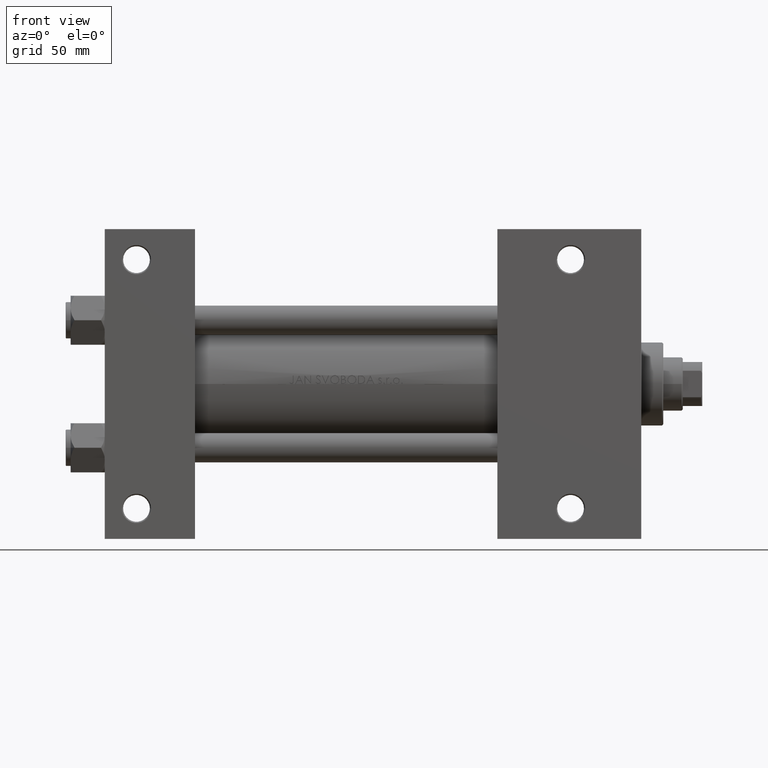
[diagram: clean part render]
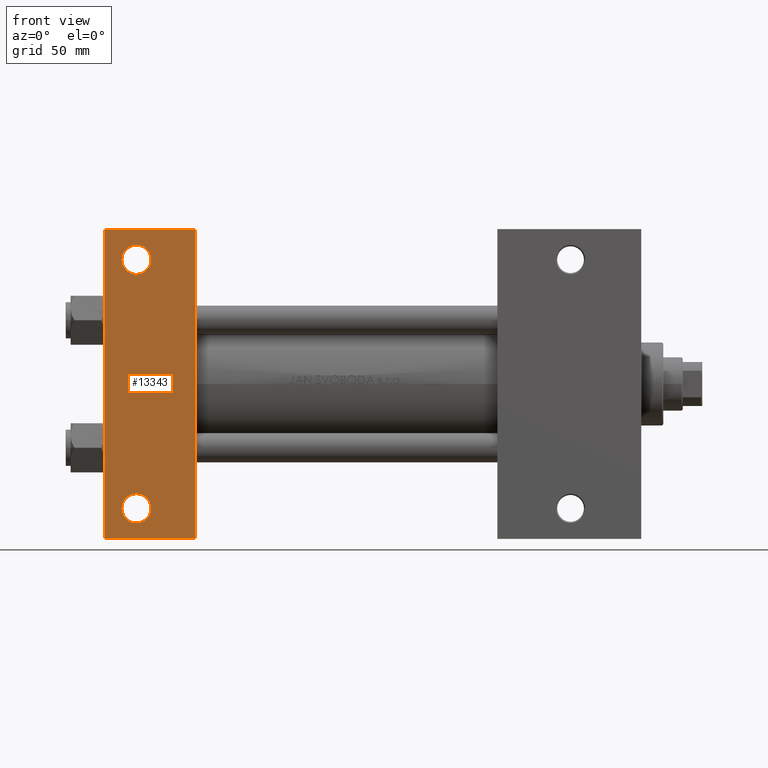
[diagram: same view with one face highlighted and labeled with its STEP entity id]
A machine part, front view. The second image highlights one B-rep face of the part: STEP entity #13343.
In plain terms, the highlighted planar face has unit normal (0, -1, -0).
Its self-contained STEP definition (entity closure, byte-faithful):
#752 = AXIS2_PLACEMENT_3D ( 'NONE', #20188, #1274, #19438 ) ;
#871 = DIRECTION ( 'NONE',  ( -0.000000000000000000, -9.251858538542972814E-17, 1.000000000000000000 ) ) ;
#1274 = DIRECTION ( 'NONE',  ( -0.000000000000000000, -9.251858538542972814E-17, 1.000000000000000000 ) ) ;
#2126 = FACE_BOUND ( 'NONE', #15290, .T. ) ;
#2264 = CARTESIAN_POINT ( 'NONE',  ( 0.000000000000000000, 37.49999999999999289, -37.50000000000000000 ) ) ;
#2372 = VERTEX_POINT ( 'NONE', #9026 ) ;
#3702 = CARTESIAN_POINT ( 'NONE',  ( 12.99999999999999822, -51.00000000000002132, -37.50000000000000711 ) ) ;
#3797 = CARTESIAN_POINT ( 'NONE',  ( 37.00000000000001421, 63.50000000000000000, -37.50000000000002132 ) ) ;
#3877 = VERTEX_POINT ( 'NONE', #35134 ) ;
#4866 = CARTESIAN_POINT ( 'NONE',  ( 7.000500000000034362, 50.99999999999995737, -37.50000000000000000 ) ) ;
#5069 = VECTOR ( 'NONE', #30035, 1000.000000000000000 ) ;
#6064 = EDGE_CURVE ( 'NONE', #38512, #3877, #26012, .T. ) ;
#6643 = VERTEX_POINT ( 'NONE', #7510 ) ;
#6784 = ORIENTED_EDGE ( 'NONE', *, *, #35341, .T. ) ;
#7510 = CARTESIAN_POINT ( 'NONE',  ( 3.977209754999747208E-16, -63.50000000000000000, -37.49999999999999289 ) ) ;
#7533 = CIRCLE ( 'NONE', #40957, 5.999499999999962974 ) ;
#8202 = CARTESIAN_POINT ( 'NONE',  ( 12.99999999999999822, 50.99999999999995737, -37.50000000000000000 ) ) ;
#8453 = DIRECTION ( 'NONE',  ( 0.000000000000000000, 1.000000000000000000, 0.000000000000000000 ) ) ;
#9026 = CARTESIAN_POINT ( 'NONE',  ( 18.99949999999996209, 50.99999999999995737, -37.50000000000000000 ) ) ;
#9802 = EDGE_CURVE ( 'NONE', #21146, #2372, #41596, .T. ) ;
#10255 = CIRCLE ( 'NONE', #752, 5.999499999999962974 ) ;
#11377 = EDGE_CURVE ( 'NONE', #15370, #38512, #40971, .T. ) ;
#13343 = ADVANCED_FACE ( 'NONE', ( #2126, #28303, #28795 ), #32526, .T. ) ;
#13560 = DIRECTION ( 'NONE',  ( 0.000000000000000000, 9.251858538542972814E-17, -1.000000000000000000 ) ) ;
#13686 = CARTESIAN_POINT ( 'NONE',  ( 7.000500000000034362, -51.00000000000002132, -37.50000000000000711 ) ) ;
#14284 = CARTESIAN_POINT ( 'NONE',  ( 37.00000000000000000, 37.49999999999999289, -37.50000000000000000 ) ) ;
#14840 = VERTEX_POINT ( 'NONE', #37329 ) ;
#15290 = EDGE_LOOP ( 'NONE', ( #34602, #48499 ) ) ;
#15370 = VERTEX_POINT ( 'NONE', #26183 ) ;
#18891 = DIRECTION ( 'NONE',  ( -0.000000000000000000, -9.251858538542972814E-17, 1.000000000000000000 ) ) ;
#19045 = CARTESIAN_POINT ( 'NONE',  ( 12.99999999999999822, 50.99999999999995737, -37.50000000000000000 ) ) ;
#19438 = DIRECTION ( 'NONE',  ( 0.000000000000000000, 1.000000000000000000, 0.000000000000000000 ) ) ;
#20188 = CARTESIAN_POINT ( 'NONE',  ( 12.99999999999999822, -51.00000000000002132, -37.50000000000000711 ) ) ;
#20260 = AXIS2_PLACEMENT_3D ( 'NONE', #47690, #13560, #43960 ) ;
#21146 = VERTEX_POINT ( 'NONE', #4866 ) ;
#21243 = ORIENTED_EDGE ( 'NONE', *, *, #27175, .F. ) ;
#21863 = EDGE_LOOP ( 'NONE', ( #21243, #43482, #30128, #37318 ) ) ;
#23590 = VECTOR ( 'NONE', #33510, 1000.000000000000000 ) ;
#24605 = CIRCLE ( 'NONE', #29381, 5.999499999999962974 ) ;
#25177 = DIRECTION ( 'NONE',  ( 0.000000000000000000, -1.000000000000000000, -9.251858538542972814E-17 ) ) ;
#25284 = EDGE_CURVE ( 'NONE', #3877, #6643, #37236, .T. ) ;
#26012 = LINE ( 'NONE', #14284, #37503 ) ;
#26036 = VECTOR ( 'NONE', #25177, 1000.000000000000000 ) ;
#26041 = CARTESIAN_POINT ( 'NONE',  ( 1.595073532467135441E-14, 63.50000000000000000, -37.50000000000002132 ) ) ;
#26183 = CARTESIAN_POINT ( 'NONE',  ( 1.595073532467135441E-14, 63.50000000000000000, -37.50000000000002132 ) ) ;
#26270 = CARTESIAN_POINT ( 'NONE',  ( 3.977209754999747208E-16, -63.50000000000000000, -37.49999999999999289 ) ) ;
#27175 = EDGE_CURVE ( 'NONE', #15370, #6643, #36883, .T. ) ;
#28303 = FACE_BOUND ( 'NONE', #32419, .T. ) ;
#28795 = FACE_OUTER_BOUND ( 'NONE', #21863, .T. ) ;
#29381 = AXIS2_PLACEMENT_3D ( 'NONE', #3702, #18891, #49274 ) ;
#30035 = DIRECTION ( 'NONE',  ( 1.000000000000000000, 0.000000000000000000, 0.000000000000000000 ) ) ;
#30128 = ORIENTED_EDGE ( 'NONE', *, *, #6064, .T. ) ;
#30248 = DIRECTION ( 'NONE',  ( 0.000000000000000000, -1.000000000000000000, -9.251858538542972814E-17 ) ) ;
#30896 = DIRECTION ( 'NONE',  ( -0.000000000000000000, -9.251858538542972814E-17, 1.000000000000000000 ) ) ;
#32419 = EDGE_LOOP ( 'NONE', ( #40833, #6784 ) ) ;
#32526 = PLANE ( 'NONE',  #20260 ) ;
#33510 = DIRECTION ( 'NONE',  ( -1.000000000000000000, -0.000000000000000000, -0.000000000000000000 ) ) ;
#34602 = ORIENTED_EDGE ( 'NONE', *, *, #9802, .T. ) ;
#35134 = CARTESIAN_POINT ( 'NONE',  ( 37.00000000000000000, -63.50000000000000000, -37.49999999999999289 ) ) ;
#35341 = EDGE_CURVE ( 'NONE', #14840, #36389, #10255, .T. ) ;
#35626 = EDGE_CURVE ( 'NONE', #36389, #14840, #24605, .T. ) ;
#36389 = VERTEX_POINT ( 'NONE', #13686 ) ;
#36883 = LINE ( 'NONE', #2264, #26036 ) ;
#37236 = LINE ( 'NONE', #26270, #23590 ) ;
#37318 = ORIENTED_EDGE ( 'NONE', *, *, #25284, .T. ) ;
#37329 = CARTESIAN_POINT ( 'NONE',  ( 18.99949999999996209, -51.00000000000002132, -37.50000000000000711 ) ) ;
#37503 = VECTOR ( 'NONE', #30248, 1000.000000000000000 ) ;
#38512 = VERTEX_POINT ( 'NONE', #3797 ) ;
#40833 = ORIENTED_EDGE ( 'NONE', *, *, #35626, .T. ) ;
#40957 = AXIS2_PLACEMENT_3D ( 'NONE', #19045, #871, #41723 ) ;
#40971 = LINE ( 'NONE', #26041, #5069 ) ;
#41596 = CIRCLE ( 'NONE', #42400, 5.999499999999962974 ) ;
#41723 = DIRECTION ( 'NONE',  ( 0.000000000000000000, 1.000000000000000000, 0.000000000000000000 ) ) ;
#42400 = AXIS2_PLACEMENT_3D ( 'NONE', #8202, #30896, #8453 ) ;
#43482 = ORIENTED_EDGE ( 'NONE', *, *, #11377, .T. ) ;
#43960 = DIRECTION ( 'NONE',  ( 0.000000000000000000, 1.000000000000000000, 9.251858538542972814E-17 ) ) ;
#47690 = CARTESIAN_POINT ( 'NONE',  ( 37.00000000000000000, 37.49999999999999289, -37.50000000000000000 ) ) ;
#48499 = ORIENTED_EDGE ( 'NONE', *, *, #48562, .T. ) ;
#48562 = EDGE_CURVE ( 'NONE', #2372, #21146, #7533, .T. ) ;
#49274 = DIRECTION ( 'NONE',  ( 0.000000000000000000, 1.000000000000000000, 0.000000000000000000 ) ) ;